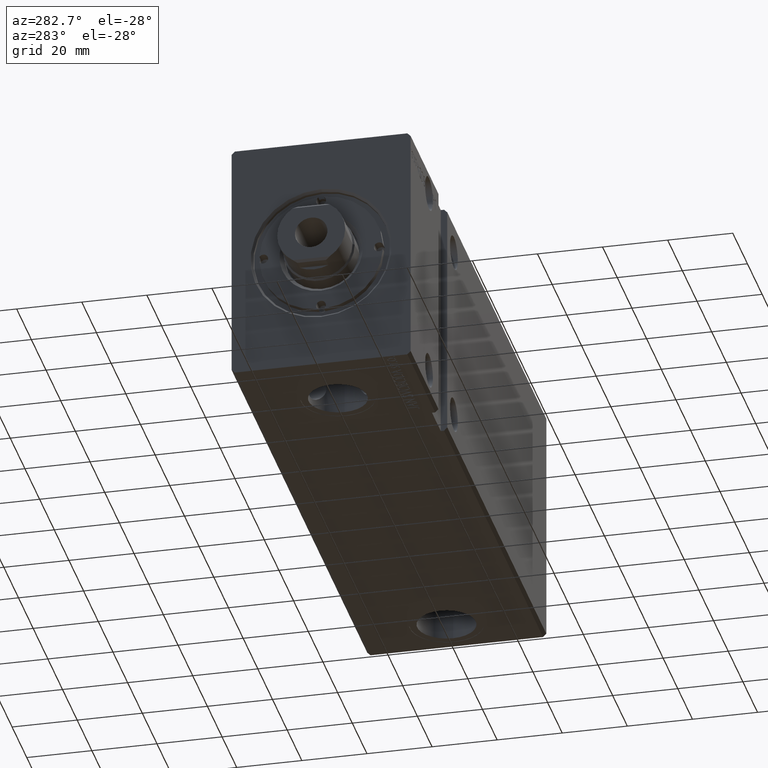
[diagram: clean part render]
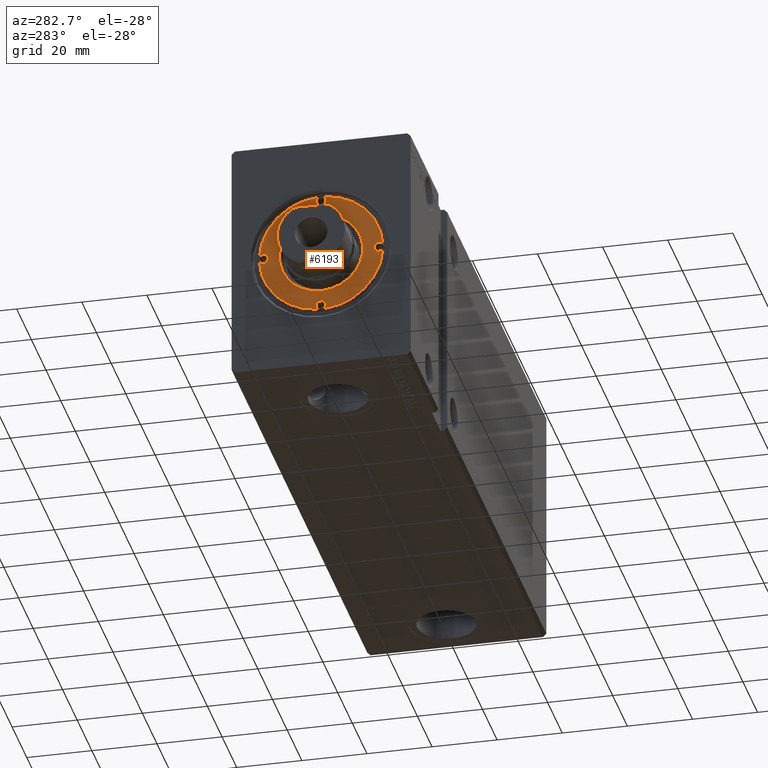
[diagram: same view with one face highlighted and labeled with its STEP entity id]
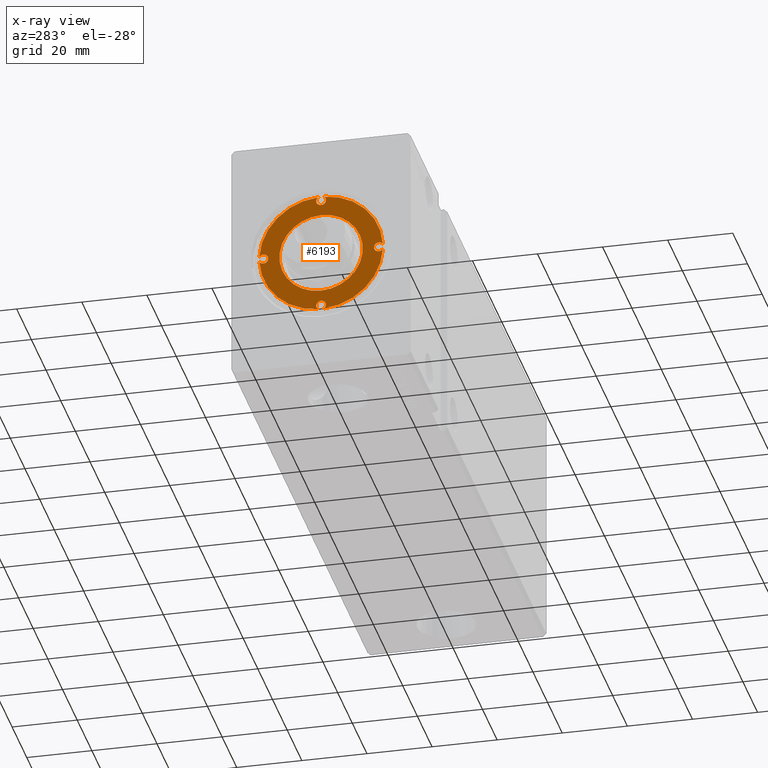
[diagram: x-ray of the same camera — body ghosted, the highlighted face saturated]
A machine part, auxiliary view. The second image highlights one B-rep face of the part: STEP entity #6193.
The next image is the same camera in x-ray: the body ghosted, the highlighted face saturated — about 0% of this face is hidden behind the body in this view.
In plain terms, the highlighted planar face has unit normal (-1, 0, 0).
Its self-contained STEP definition (entity closure, byte-faithful):
#71 = EDGE_LOOP ( 'NONE', ( #30736, #28632 ) ) ;
#95 = EDGE_CURVE ( 'NONE', #19325, #35244, #6005, .T. ) ;
#335 = DIRECTION ( 'NONE',  ( 1.000000000000000000, 0.000000000000000000, 0.000000000000000000 ) ) ;
#641 = DIRECTION ( 'NONE',  ( -0.000000000000000000, -0.000000000000000000, -1.000000000000000000 ) ) ;
#733 = CARTESIAN_POINT ( 'NONE',  ( 0.000000000000000000, 17.75000000000000000, 11.79999999999999893 ) ) ;
#776 = CIRCLE ( 'NONE', #39066, 1.499999999999997780 ) ;
#1075 = FACE_BOUND ( 'NONE', #71, .T. ) ;
#1091 = CIRCLE ( 'NONE', #30473, 1.499999999999997780 ) ;
#1537 = DIRECTION ( 'NONE',  ( 1.000000000000000000, 0.000000000000000000, 0.000000000000000000 ) ) ;
#1554 = EDGE_CURVE ( 'NONE', #21187, #7068, #1091, .T. ) ;
#1636 = CARTESIAN_POINT ( 'NONE',  ( -1.499999999999996891, 17.75000000000000000, 11.79999999999999893 ) ) ;
#2159 = VERTEX_POINT ( 'NONE', #19187 ) ;
#2186 = DIRECTION ( 'NONE',  ( -0.000000000000000000, -0.000000000000000000, 1.000000000000000000 ) ) ;
#2535 = EDGE_CURVE ( 'NONE', #17636, #20473, #34160, .T. ) ;
#2760 = EDGE_CURVE ( 'NONE', #27418, #21187, #25845, .T. ) ;
#4141 = ORIENTED_EDGE ( 'NONE', *, *, #4845, .F. ) ;
#4166 = CARTESIAN_POINT ( 'NONE',  ( 0.000000000000000000, -17.75000000000000000, 11.79999999999999893 ) ) ;
#4237 = CIRCLE ( 'NONE', #26603, 1.499999999999997780 ) ;
#4845 = EDGE_CURVE ( 'NONE', #2159, #35244, #14552, .T. ) ;
#5273 = ORIENTED_EDGE ( 'NONE', *, *, #34679, .F. ) ;
#5305 = CARTESIAN_POINT ( 'NONE',  ( 17.75000000000000000, 0.000000000000000000, 11.79999999999999893 ) ) ;
#5925 = ORIENTED_EDGE ( 'NONE', *, *, #28071, .F. ) ;
#6005 = CIRCLE ( 'NONE', #21328, 19.00000000000000000 ) ;
#6193 = ADVANCED_FACE ( 'NONE', ( #16264, #1075 ), #16662, .T. ) ;
#6851 = VERTEX_POINT ( 'NONE', #29683 ) ;
#7068 = VERTEX_POINT ( 'NONE', #18377 ) ;
#7102 = AXIS2_PLACEMENT_3D ( 'NONE', #35352, #2186, #38740 ) ;
#7166 = CARTESIAN_POINT ( 'NONE',  ( -16.25000000000000000, 0.000000000000000000, 11.79999999999999893 ) ) ;
#7380 = CARTESIAN_POINT ( 'NONE',  ( 17.75000000000000000, 0.000000000000000000, 11.79999999999999893 ) ) ;
#7422 = AXIS2_PLACEMENT_3D ( 'NONE', #21261, #33451, #23872 ) ;
#7585 = CIRCLE ( 'NONE', #30574, 12.79999999999997407 ) ;
#7960 = CARTESIAN_POINT ( 'NONE',  ( -12.79999999999997407, 1.567547902908609029E-15, 11.79999999999999893 ) ) ;
#8338 = DIRECTION ( 'NONE',  ( -0.000000000000000000, -0.000000000000000000, -1.000000000000000000 ) ) ;
#8352 = DIRECTION ( 'NONE',  ( -0.000000000000000000, -0.000000000000000000, 1.000000000000000000 ) ) ;
#8875 = DIRECTION ( 'NONE',  ( 1.000000000000000000, 0.000000000000000000, 0.000000000000000000 ) ) ;
#8910 = EDGE_LOOP ( 'NONE', ( #12562, #13900, #32463, #22343, #5925, #10912, #24569, #5273, #31635, #4141, #11523, #34857, #14872, #10719 ) ) ;
#9023 = CIRCLE ( 'NONE', #25593, 19.00000000000000000 ) ;
#9707 = CARTESIAN_POINT ( 'NONE',  ( 0.000000000000000000, 0.000000000000000000, 11.79999999999999893 ) ) ;
#10409 = CARTESIAN_POINT ( 'NONE',  ( 0.000000000000000000, 0.000000000000000000, 11.79999999999999893 ) ) ;
#10470 = CIRCLE ( 'NONE', #39217, 1.499999999999996891 ) ;
#10719 = ORIENTED_EDGE ( 'NONE', *, *, #1554, .F. ) ;
#10732 = CARTESIAN_POINT ( 'NONE',  ( 16.25000000000000000, 1.836970198721027222E-16, 11.79999999999999893 ) ) ;
#10813 = EDGE_CURVE ( 'NONE', #33352, #27485, #7585, .T. ) ;
#10912 = ORIENTED_EDGE ( 'NONE', *, *, #33436, .T. ) ;
#11010 = DIRECTION ( 'NONE',  ( 1.000000000000000000, 0.000000000000000000, 0.000000000000000000 ) ) ;
#11344 = CARTESIAN_POINT ( 'NONE',  ( 0.000000000000000000, 0.000000000000000000, 11.79999999999999893 ) ) ;
#11523 = ORIENTED_EDGE ( 'NONE', *, *, #30992, .F. ) ;
#11908 = CIRCLE ( 'NONE', #34229, 12.79999999999997407 ) ;
#12026 = VERTEX_POINT ( 'NONE', #1636 ) ;
#12562 = ORIENTED_EDGE ( 'NONE', *, *, #2760, .F. ) ;
#13717 = AXIS2_PLACEMENT_3D ( 'NONE', #22457, #26064, #19661 ) ;
#13900 = ORIENTED_EDGE ( 'NONE', *, *, #31660, .T. ) ;
#14552 = CIRCLE ( 'NONE', #28584, 1.499999999999996891 ) ;
#14594 = DIRECTION ( 'NONE',  ( 0.000000000000000000, 0.000000000000000000, 1.000000000000000000 ) ) ;
#14872 = ORIENTED_EDGE ( 'NONE', *, *, #37827, .T. ) ;
#16264 = FACE_OUTER_BOUND ( 'NONE', #8910, .T. ) ;
#16662 = PLANE ( 'NONE',  #13717 ) ;
#17215 = CARTESIAN_POINT ( 'NONE',  ( 0.000000000000000000, -17.75000000000000000, 11.79999999999999893 ) ) ;
#17328 = DIRECTION ( 'NONE',  ( 1.000000000000000000, 0.000000000000000000, 0.000000000000000000 ) ) ;
#17417 = DIRECTION ( 'NONE',  ( 1.000000000000000000, 0.000000000000000000, 0.000000000000000000 ) ) ;
#17478 = AXIS2_PLACEMENT_3D ( 'NONE', #17990, #14594, #36752 ) ;
#17622 = DIRECTION ( 'NONE',  ( -0.000000000000000000, -0.000000000000000000, 1.000000000000000000 ) ) ;
#17636 = VERTEX_POINT ( 'NONE', #32523 ) ;
#17990 = CARTESIAN_POINT ( 'NONE',  ( 0.000000000000000000, 0.000000000000000000, 11.79999999999999893 ) ) ;
#18377 = CARTESIAN_POINT ( 'NONE',  ( -18.98063380281688950, 0.8576365450261722589, 11.79999999999999893 ) ) ;
#18399 = VERTEX_POINT ( 'NONE', #21178 ) ;
#18729 = DIRECTION ( 'NONE',  ( -0.000000000000000000, -0.000000000000000000, 1.000000000000000000 ) ) ;
#18982 = DIRECTION ( 'NONE',  ( 1.000000000000000000, 0.000000000000000000, 0.000000000000000000 ) ) ;
#19187 = CARTESIAN_POINT ( 'NONE',  ( 1.499999999999996891, 17.75000000000000000, 11.79999999999999893 ) ) ;
#19305 = EDGE_CURVE ( 'NONE', #18399, #17636, #10470, .T. ) ;
#19325 = VERTEX_POINT ( 'NONE', #23949 ) ;
#19661 = DIRECTION ( 'NONE',  ( 1.000000000000000000, 0.000000000000000000, -0.000000000000000000 ) ) ;
#20136 = DIRECTION ( 'NONE',  ( 0.000000000000000000, 0.000000000000000000, 1.000000000000000000 ) ) ;
#20473 = VERTEX_POINT ( 'NONE', #38874 ) ;
#20784 = AXIS2_PLACEMENT_3D ( 'NONE', #17215, #17622, #11010 ) ;
#21178 = CARTESIAN_POINT ( 'NONE',  ( 1.499999999999996891, -17.75000000000000000, 11.79999999999999893 ) ) ;
#21187 = VERTEX_POINT ( 'NONE', #7166 ) ;
#21261 = CARTESIAN_POINT ( 'NONE',  ( 0.000000000000000000, 17.75000000000000000, 11.79999999999999893 ) ) ;
#21328 = AXIS2_PLACEMENT_3D ( 'NONE', #9707, #28106, #30706 ) ;
#21963 = DIRECTION ( 'NONE',  ( -0.000000000000000000, -0.000000000000000000, 1.000000000000000000 ) ) ;
#22343 = ORIENTED_EDGE ( 'NONE', *, *, #19305, .F. ) ;
#22385 = CIRCLE ( 'NONE', #7102, 1.499999999999996891 ) ;
#22457 = CARTESIAN_POINT ( 'NONE',  ( 0.000000000000000000, 0.000000000000000000, 11.79999999999999893 ) ) ;
#22531 = CARTESIAN_POINT ( 'NONE',  ( 12.79999999999997407, 0.000000000000000000, 11.79999999999999893 ) ) ;
#23872 = DIRECTION ( 'NONE',  ( 1.000000000000000000, 0.000000000000000000, 0.000000000000000000 ) ) ;
#23949 = CARTESIAN_POINT ( 'NONE',  ( 18.98063380281688950, 0.8576365450261742573, 11.79999999999999893 ) ) ;
#24090 = DIRECTION ( 'NONE',  ( 0.000000000000000000, 0.000000000000000000, 1.000000000000000000 ) ) ;
#24299 = DIRECTION ( 'NONE',  ( 1.000000000000000000, 0.000000000000000000, 0.000000000000000000 ) ) ;
#24569 = ORIENTED_EDGE ( 'NONE', *, *, #31026, .F. ) ;
#25294 = CARTESIAN_POINT ( 'NONE',  ( 0.8576365450261690393, -18.98063380281689305, 11.79999999999999893 ) ) ;
#25593 = AXIS2_PLACEMENT_3D ( 'NONE', #26126, #20136, #17328 ) ;
#25741 = CIRCLE ( 'NONE', #17478, 19.00000000000000000 ) ;
#25845 = CIRCLE ( 'NONE', #26489, 1.499999999999997780 ) ;
#26064 = DIRECTION ( 'NONE',  ( 0.000000000000000000, 0.000000000000000000, 1.000000000000000000 ) ) ;
#26126 = CARTESIAN_POINT ( 'NONE',  ( 0.000000000000000000, 0.000000000000000000, 11.79999999999999893 ) ) ;
#26489 = AXIS2_PLACEMENT_3D ( 'NONE', #30872, #39462, #24299 ) ;
#26603 = AXIS2_PLACEMENT_3D ( 'NONE', #7380, #28190, #18982 ) ;
#27018 = CARTESIAN_POINT ( 'NONE',  ( -18.98063380281689305, -0.8576365450261700385, 11.79999999999999893 ) ) ;
#27418 = VERTEX_POINT ( 'NONE', #27018 ) ;
#27485 = VERTEX_POINT ( 'NONE', #7960 ) ;
#27725 = DIRECTION ( 'NONE',  ( -0.000000000000000000, -0.000000000000000000, 1.000000000000000000 ) ) ;
#28071 = EDGE_CURVE ( 'NONE', #31719, #18399, #37337, .T. ) ;
#28106 = DIRECTION ( 'NONE',  ( 0.000000000000000000, 0.000000000000000000, 1.000000000000000000 ) ) ;
#28190 = DIRECTION ( 'NONE',  ( -0.000000000000000000, -0.000000000000000000, 1.000000000000000000 ) ) ;
#28584 = AXIS2_PLACEMENT_3D ( 'NONE', #733, #18729, #36902 ) ;
#28632 = ORIENTED_EDGE ( 'NONE', *, *, #29924, .T. ) ;
#29683 = CARTESIAN_POINT ( 'NONE',  ( -0.8576365450261700385, 18.98063380281688950, 11.79999999999999893 ) ) ;
#29924 = EDGE_CURVE ( 'NONE', #27485, #33352, #11908, .T. ) ;
#30136 = DIRECTION ( 'NONE',  ( 1.000000000000000000, 0.000000000000000000, 0.000000000000000000 ) ) ;
#30473 = AXIS2_PLACEMENT_3D ( 'NONE', #36493, #27725, #335 ) ;
#30574 = AXIS2_PLACEMENT_3D ( 'NONE', #11344, #8338, #1537 ) ;
#30706 = DIRECTION ( 'NONE',  ( 1.000000000000000000, 0.000000000000000000, 0.000000000000000000 ) ) ;
#30736 = ORIENTED_EDGE ( 'NONE', *, *, #10813, .T. ) ;
#30872 = CARTESIAN_POINT ( 'NONE',  ( -17.75000000000000000, 0.000000000000000000, 11.79999999999999893 ) ) ;
#30992 = EDGE_CURVE ( 'NONE', #12026, #2159, #31680, .T. ) ;
#31026 = EDGE_CURVE ( 'NONE', #35884, #34594, #4237, .T. ) ;
#31269 = EDGE_CURVE ( 'NONE', #6851, #12026, #22385, .T. ) ;
#31635 = ORIENTED_EDGE ( 'NONE', *, *, #95, .T. ) ;
#31660 = EDGE_CURVE ( 'NONE', #27418, #20473, #9023, .T. ) ;
#31680 = CIRCLE ( 'NONE', #7422, 1.499999999999996891 ) ;
#31719 = VERTEX_POINT ( 'NONE', #25294 ) ;
#32463 = ORIENTED_EDGE ( 'NONE', *, *, #2535, .F. ) ;
#32523 = CARTESIAN_POINT ( 'NONE',  ( -1.499999999999996891, -17.75000000000000000, 11.79999999999999893 ) ) ;
#33315 = AXIS2_PLACEMENT_3D ( 'NONE', #33462, #24090, #8875 ) ;
#33352 = VERTEX_POINT ( 'NONE', #22531 ) ;
#33436 = EDGE_CURVE ( 'NONE', #31719, #34594, #37719, .T. ) ;
#33451 = DIRECTION ( 'NONE',  ( -0.000000000000000000, -0.000000000000000000, 1.000000000000000000 ) ) ;
#33462 = CARTESIAN_POINT ( 'NONE',  ( 0.000000000000000000, 0.000000000000000000, 11.79999999999999893 ) ) ;
#34160 = CIRCLE ( 'NONE', #37326, 1.499999999999996891 ) ;
#34229 = AXIS2_PLACEMENT_3D ( 'NONE', #10409, #641, #17417 ) ;
#34345 = DIRECTION ( 'NONE',  ( 1.000000000000000000, 0.000000000000000000, 0.000000000000000000 ) ) ;
#34594 = VERTEX_POINT ( 'NONE', #37459 ) ;
#34679 = EDGE_CURVE ( 'NONE', #19325, #35884, #776, .T. ) ;
#34857 = ORIENTED_EDGE ( 'NONE', *, *, #31269, .F. ) ;
#35244 = VERTEX_POINT ( 'NONE', #38916 ) ;
#35352 = CARTESIAN_POINT ( 'NONE',  ( 0.000000000000000000, 17.75000000000000000, 11.79999999999999893 ) ) ;
#35716 = CARTESIAN_POINT ( 'NONE',  ( 0.000000000000000000, -17.75000000000000000, 11.79999999999999893 ) ) ;
#35884 = VERTEX_POINT ( 'NONE', #10732 ) ;
#36493 = CARTESIAN_POINT ( 'NONE',  ( -17.75000000000000000, 0.000000000000000000, 11.79999999999999893 ) ) ;
#36752 = DIRECTION ( 'NONE',  ( 1.000000000000000000, 0.000000000000000000, 0.000000000000000000 ) ) ;
#36902 = DIRECTION ( 'NONE',  ( 1.000000000000000000, 0.000000000000000000, 0.000000000000000000 ) ) ;
#37326 = AXIS2_PLACEMENT_3D ( 'NONE', #4166, #21963, #34345 ) ;
#37337 = CIRCLE ( 'NONE', #20784, 1.499999999999996891 ) ;
#37459 = CARTESIAN_POINT ( 'NONE',  ( 18.98063380281688950, -0.8576365450261710377, 11.79999999999999893 ) ) ;
#37719 = CIRCLE ( 'NONE', #33315, 19.00000000000000000 ) ;
#37827 = EDGE_CURVE ( 'NONE', #6851, #7068, #25741, .T. ) ;
#38462 = DIRECTION ( 'NONE',  ( -0.000000000000000000, -0.000000000000000000, 1.000000000000000000 ) ) ;
#38740 = DIRECTION ( 'NONE',  ( 1.000000000000000000, 0.000000000000000000, 0.000000000000000000 ) ) ;
#38874 = CARTESIAN_POINT ( 'NONE',  ( -0.8576365450261641543, -18.98063380281689305, 11.79999999999999893 ) ) ;
#38916 = CARTESIAN_POINT ( 'NONE',  ( 0.8576365450261712597, 18.98063380281688950, 11.79999999999999893 ) ) ;
#39062 = DIRECTION ( 'NONE',  ( 1.000000000000000000, 0.000000000000000000, 0.000000000000000000 ) ) ;
#39066 = AXIS2_PLACEMENT_3D ( 'NONE', #5305, #38462, #39062 ) ;
#39217 = AXIS2_PLACEMENT_3D ( 'NONE', #35716, #8352, #30136 ) ;
#39462 = DIRECTION ( 'NONE',  ( -0.000000000000000000, -0.000000000000000000, 1.000000000000000000 ) ) ;